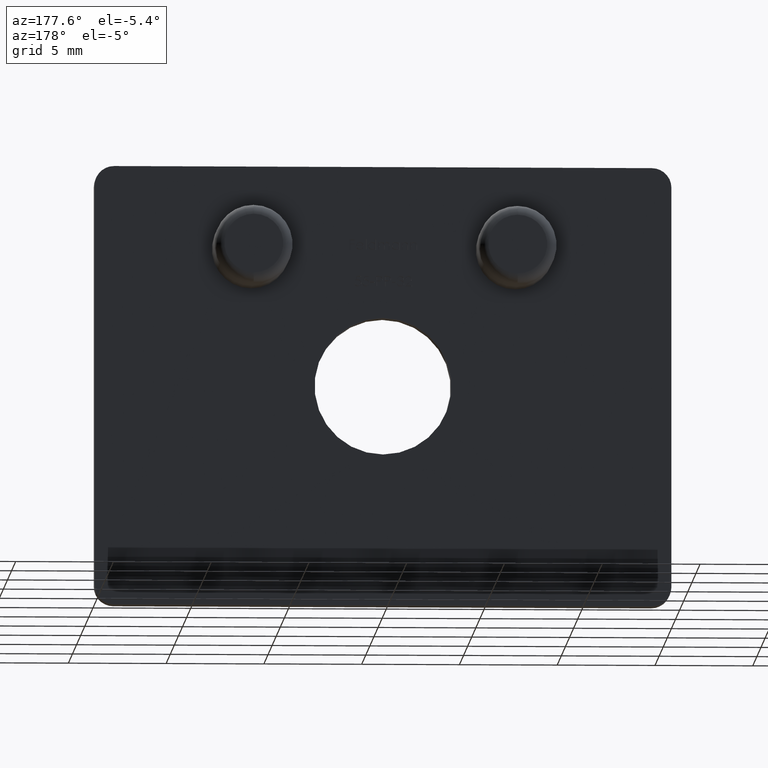
[diagram: clean part render]
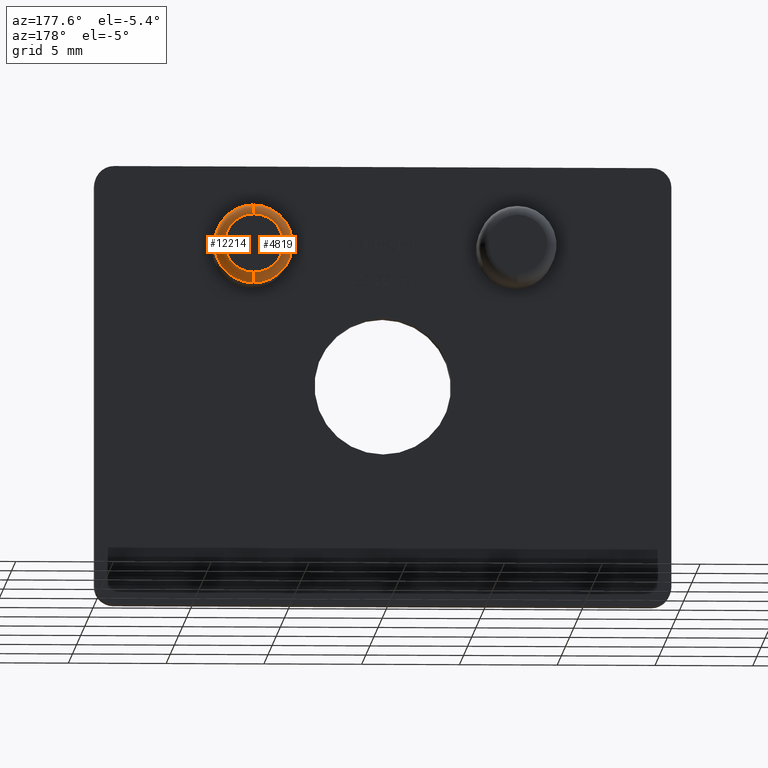
[diagram: same view with one multi-face feature highlighted, each face labeled with its STEP entity id]
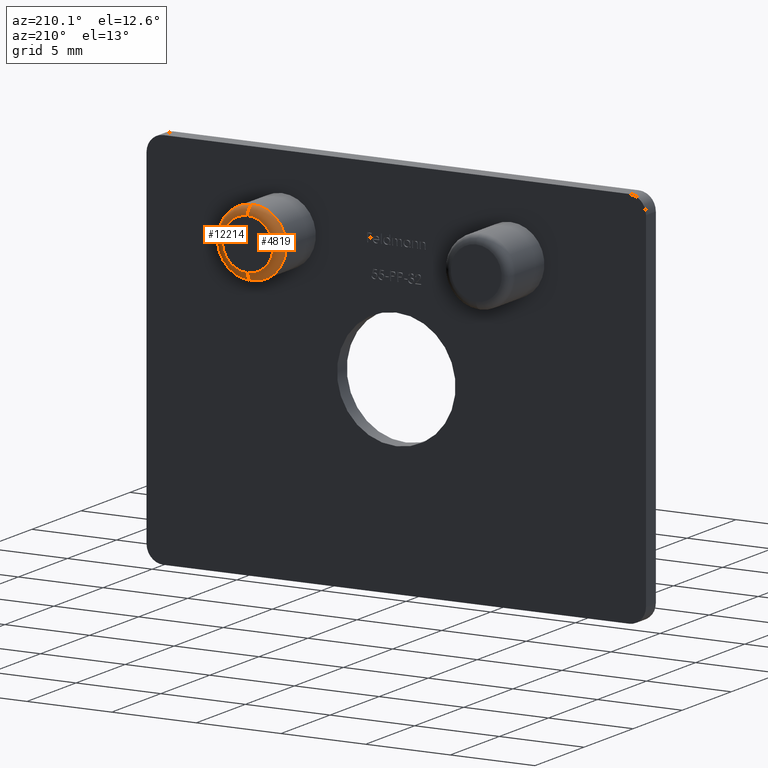
[diagram: same view with one multi-face feature highlighted, each face labeled with its STEP entity id]
A machine part, auxiliary view. The highlighted faces form ONE feature: a constant-radius fillet chain: 2 tangent blend faces with common blend radius 0.5 mm. The faces share edges in the B-rep.
A second angle (auxiliary view) of the same feature is appended — it is thin or edge-on in the first view.
Their STEP definitions:
[1] entity #12214 (Torus):
#355 = CARTESIAN_POINT ( 'NONE',  ( 6.750000000000002700, 4.000000000000000000, 9.000000000000001800 ) ) ;
#1013 = AXIS2_PLACEMENT_3D ( 'NONE', #6917, #10594, #11582 ) ;
#1143 = CIRCLE ( 'NONE', #3842, 1.500000000000001300 ) ;
#1810 = DIRECTION ( 'NONE',  ( 0.0000000000000000000, 0.0000000000000000000, 1.000000000000000000 ) ) ;
#2207 = CIRCLE ( 'NONE', #3774, 0.5000000000000004400 ) ;
#2570 = CARTESIAN_POINT ( 'NONE',  ( 6.750000000000002700, 4.500000000000000900, 5.499999999999998200 ) ) ;
#2586 = DIRECTION ( 'NONE',  ( 0.0000000000000000000, 0.0000000000000000000, 1.000000000000000000 ) ) ;
#2862 = DIRECTION ( 'NONE',  ( 0.0000000000000000000, 1.000000000000000000, 0.0000000000000000000 ) ) ;
#2947 = EDGE_CURVE ( 'NONE', #3550, #8640, #8073, .T. ) ;
#3028 = DIRECTION ( 'NONE',  ( 1.000000000000000000, -0.0000000000000000000, 1.224646799147353200E-016 ) ) ;
#3395 = DIRECTION ( 'NONE',  ( 0.0000000000000000000, 1.000000000000000000, 0.0000000000000000000 ) ) ;
#3550 = VERTEX_POINT ( 'NONE', #3830 ) ;
#3734 = EDGE_CURVE ( 'NONE', #3550, #11186, #5955, .T. ) ;
#3774 = AXIS2_PLACEMENT_3D ( 'NONE', #7759, #10598, #4902 ) ;
#3826 = CARTESIAN_POINT ( 'NONE',  ( 6.750000000000002700, 4.500000000000000900, 8.500000000000000000 ) ) ;
#3830 = CARTESIAN_POINT ( 'NONE',  ( 6.750000000000002700, 4.000000000000000000, 4.999999999999997300 ) ) ;
#3842 = AXIS2_PLACEMENT_3D ( 'NONE', #12229, #2862, #1810 ) ;
#4446 = EDGE_CURVE ( 'NONE', #7876, #11186, #1143, .T. ) ;
#4595 = ORIENTED_EDGE ( 'NONE', *, *, #2947, .F. ) ;
#4773 = EDGE_CURVE ( 'NONE', #8640, #7876, #2207, .T. ) ;
#4879 = CARTESIAN_POINT ( 'NONE',  ( 6.750000000000002700, 4.000000000000000000, 5.499999999999998200 ) ) ;
#4902 = DIRECTION ( 'NONE',  ( 0.0000000000000000000, 0.0000000000000000000, 1.000000000000000000 ) ) ;
#5322 = AXIS2_PLACEMENT_3D ( 'NONE', #7142, #3395, #2586 ) ;
#5489 = FACE_OUTER_BOUND ( 'NONE', #10563, .T. ) ;
#5955 = CIRCLE ( 'NONE', #8461, 0.5000000000000004400 ) ;
#6917 = CARTESIAN_POINT ( 'NONE',  ( 6.750000000000002700, 4.000000000000000000, 6.999999999999999100 ) ) ;
#7142 = CARTESIAN_POINT ( 'NONE',  ( 6.750000000000002700, 4.000000000000000000, 6.999999999999999100 ) ) ;
#7545 = ORIENTED_EDGE ( 'NONE', *, *, #4446, .F. ) ;
#7759 = CARTESIAN_POINT ( 'NONE',  ( 6.750000000000002700, 4.000000000000000000, 8.500000000000000000 ) ) ;
#7876 = VERTEX_POINT ( 'NONE', #3826 ) ;
#8073 = CIRCLE ( 'NONE', #1013, 2.000000000000001800 ) ;
#8461 = AXIS2_PLACEMENT_3D ( 'NONE', #4879, #3028, #11530 ) ;
#8594 = ORIENTED_EDGE ( 'NONE', *, *, #3734, .T. ) ;
#8628 = TOROIDAL_SURFACE ( 'NONE', #5322, 1.500000000000001300, 0.5000000000000000000 ) ;
#8640 = VERTEX_POINT ( 'NONE', #355 ) ;
#10563 = EDGE_LOOP ( 'NONE', ( #4595, #8594, #7545, #11339 ) ) ;
#10594 = DIRECTION ( 'NONE',  ( -0.0000000000000000000, -1.000000000000000000, -0.0000000000000000000 ) ) ;
#10598 = DIRECTION ( 'NONE',  ( -1.000000000000000000, 0.0000000000000000000, 0.0000000000000000000 ) ) ;
#11186 = VERTEX_POINT ( 'NONE', #2570 ) ;
#11339 = ORIENTED_EDGE ( 'NONE', *, *, #4773, .F. ) ;
#11530 = DIRECTION ( 'NONE',  ( 0.0000000000000000000, 0.0000000000000000000, -1.000000000000000000 ) ) ;
#11582 = DIRECTION ( 'NONE',  ( 0.0000000000000000000, 0.0000000000000000000, 1.000000000000000000 ) ) ;
#12214 = ADVANCED_FACE ( 'NONE', ( #5489 ), #8628, .T. ) ;
#12229 = CARTESIAN_POINT ( 'NONE',  ( 6.750000000000002700, 4.500000000000000900, 6.999999999999999100 ) ) ;
[2] entity #4819 (Torus):
#355 = CARTESIAN_POINT ( 'NONE',  ( 6.750000000000002700, 4.000000000000000000, 9.000000000000001800 ) ) ;
#676 = ORIENTED_EDGE ( 'NONE', *, *, #4773, .T. ) ;
#837 = FACE_OUTER_BOUND ( 'NONE', #10132, .T. ) ;
#905 = DIRECTION ( 'NONE',  ( 0.0000000000000000000, 0.0000000000000000000, 1.000000000000000000 ) ) ;
#1140 = DIRECTION ( 'NONE',  ( 0.0000000000000000000, 0.0000000000000000000, 1.000000000000000000 ) ) ;
#2207 = CIRCLE ( 'NONE', #3774, 0.5000000000000004400 ) ;
#2570 = CARTESIAN_POINT ( 'NONE',  ( 6.750000000000002700, 4.500000000000000900, 5.499999999999998200 ) ) ;
#2967 = CARTESIAN_POINT ( 'NONE',  ( 6.750000000000002700, 4.000000000000000000, 6.999999999999999100 ) ) ;
#3028 = DIRECTION ( 'NONE',  ( 1.000000000000000000, -0.0000000000000000000, 1.224646799147353200E-016 ) ) ;
#3550 = VERTEX_POINT ( 'NONE', #3830 ) ;
#3734 = EDGE_CURVE ( 'NONE', #3550, #11186, #5955, .T. ) ;
#3774 = AXIS2_PLACEMENT_3D ( 'NONE', #7759, #10598, #4902 ) ;
#3826 = CARTESIAN_POINT ( 'NONE',  ( 6.750000000000002700, 4.500000000000000900, 8.500000000000000000 ) ) ;
#3830 = CARTESIAN_POINT ( 'NONE',  ( 6.750000000000002700, 4.000000000000000000, 4.999999999999997300 ) ) ;
#4400 = CIRCLE ( 'NONE', #6652, 2.000000000000001800 ) ;
#4773 = EDGE_CURVE ( 'NONE', #8640, #7876, #2207, .T. ) ;
#4819 = ADVANCED_FACE ( 'NONE', ( #837 ), #5633, .T. ) ;
#4879 = CARTESIAN_POINT ( 'NONE',  ( 6.750000000000002700, 4.000000000000000000, 5.499999999999998200 ) ) ;
#4902 = DIRECTION ( 'NONE',  ( 0.0000000000000000000, 0.0000000000000000000, 1.000000000000000000 ) ) ;
#5567 = ORIENTED_EDGE ( 'NONE', *, *, #3734, .F. ) ;
#5633 = TOROIDAL_SURFACE ( 'NONE', #9508, 1.500000000000001300, 0.5000000000000000000 ) ;
#5691 = CIRCLE ( 'NONE', #7246, 1.500000000000001300 ) ;
#5955 = CIRCLE ( 'NONE', #8461, 0.5000000000000004400 ) ;
#6608 = CARTESIAN_POINT ( 'NONE',  ( 6.750000000000002700, 4.500000000000000900, 6.999999999999999100 ) ) ;
#6648 = DIRECTION ( 'NONE',  ( 0.0000000000000000000, 1.000000000000000000, 0.0000000000000000000 ) ) ;
#6652 = AXIS2_PLACEMENT_3D ( 'NONE', #7621, #8641, #8599 ) ;
#6884 = DIRECTION ( 'NONE',  ( 0.0000000000000000000, 1.000000000000000000, 0.0000000000000000000 ) ) ;
#7246 = AXIS2_PLACEMENT_3D ( 'NONE', #6608, #6648, #905 ) ;
#7621 = CARTESIAN_POINT ( 'NONE',  ( 6.750000000000002700, 4.000000000000000000, 6.999999999999999100 ) ) ;
#7759 = CARTESIAN_POINT ( 'NONE',  ( 6.750000000000002700, 4.000000000000000000, 8.500000000000000000 ) ) ;
#7845 = EDGE_CURVE ( 'NONE', #8640, #3550, #4400, .T. ) ;
#7876 = VERTEX_POINT ( 'NONE', #3826 ) ;
#8461 = AXIS2_PLACEMENT_3D ( 'NONE', #4879, #3028, #11530 ) ;
#8599 = DIRECTION ( 'NONE',  ( 0.0000000000000000000, 0.0000000000000000000, 1.000000000000000000 ) ) ;
#8640 = VERTEX_POINT ( 'NONE', #355 ) ;
#8641 = DIRECTION ( 'NONE',  ( -0.0000000000000000000, -1.000000000000000000, -0.0000000000000000000 ) ) ;
#9508 = AXIS2_PLACEMENT_3D ( 'NONE', #2967, #6884, #1140 ) ;
#10127 = EDGE_CURVE ( 'NONE', #11186, #7876, #5691, .T. ) ;
#10132 = EDGE_LOOP ( 'NONE', ( #5567, #10352, #676, #11885 ) ) ;
#10352 = ORIENTED_EDGE ( 'NONE', *, *, #7845, .F. ) ;
#10598 = DIRECTION ( 'NONE',  ( -1.000000000000000000, 0.0000000000000000000, 0.0000000000000000000 ) ) ;
#11186 = VERTEX_POINT ( 'NONE', #2570 ) ;
#11530 = DIRECTION ( 'NONE',  ( 0.0000000000000000000, 0.0000000000000000000, -1.000000000000000000 ) ) ;
#11885 = ORIENTED_EDGE ( 'NONE', *, *, #10127, .F. ) ;